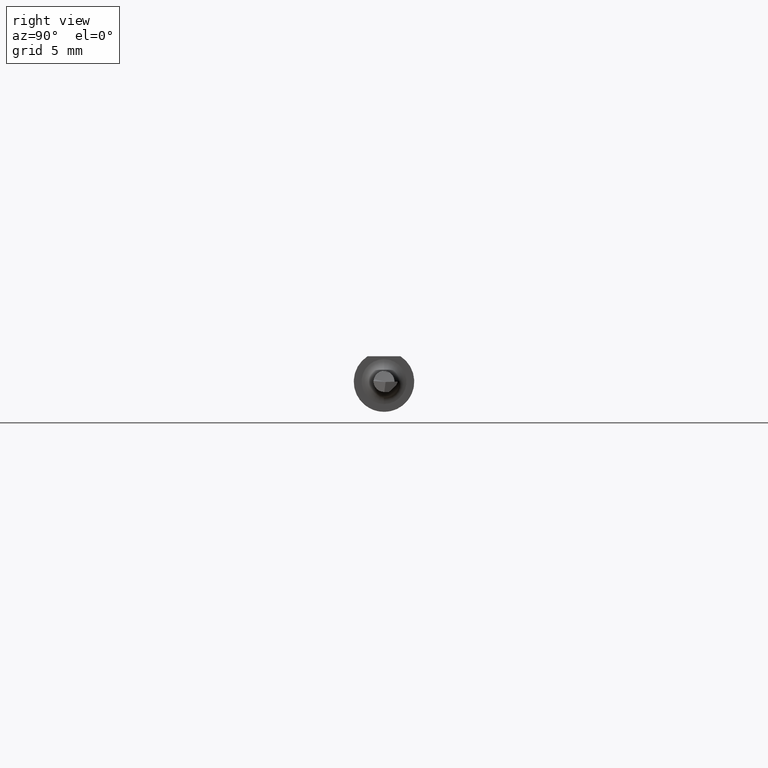
[diagram: clean part render]
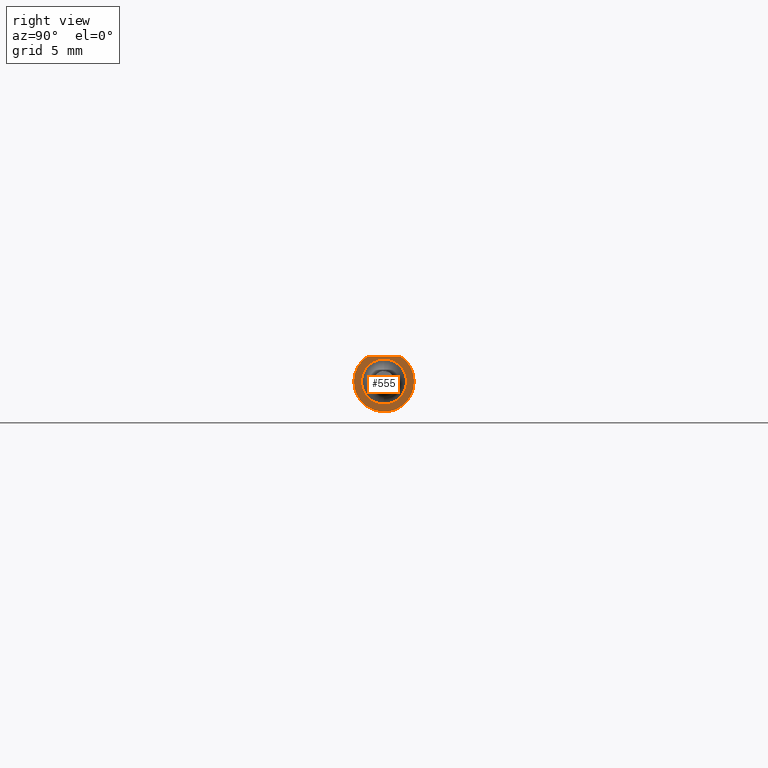
[diagram: same view with one face highlighted and labeled with its STEP entity id]
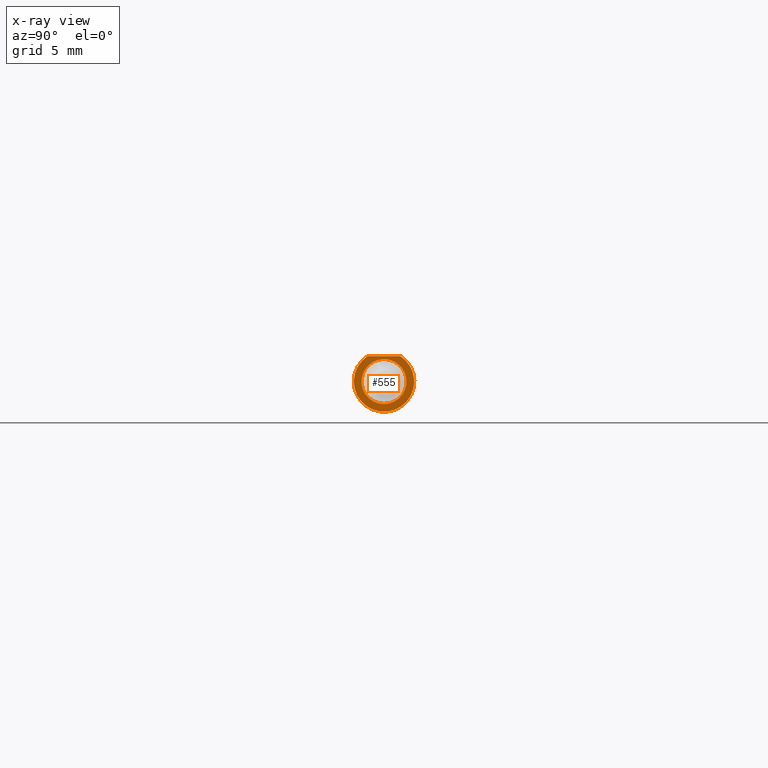
[diagram: x-ray of the same camera — body ghosted, the highlighted face saturated]
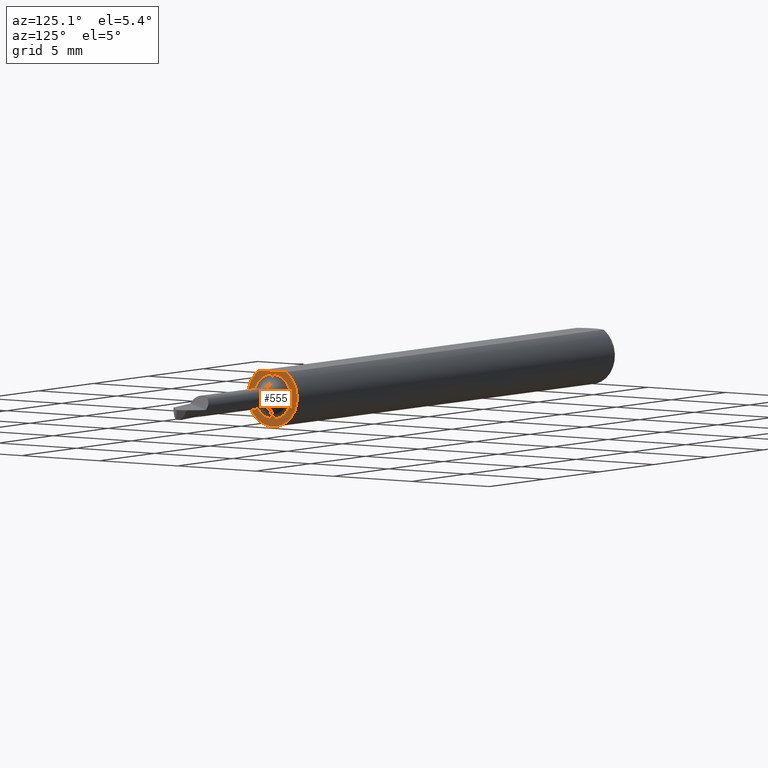
[diagram: same view with one face highlighted and labeled with its STEP entity id]
A machine part, right view. The second image highlights one B-rep face of the part: STEP entity #555.
The next image is the same camera in x-ray: the body ghosted, the highlighted face saturated — about 0% of this face is hidden behind the body in this view.
A second angle (auxiliary view) of the same face is appended — the face is thin or edge-on in the first view.
In plain terms, the highlighted planar face has unit normal (1, 0, 0).
Its self-contained STEP definition (entity closure, byte-faithful):
#13 = DIRECTION ( 'NONE',  ( 0.000000000000000000, 0.000000000000000000, -1.000000000000000000 ) ) ;
#17 = ORIENTED_EDGE ( 'NONE', *, *, #605, .T. ) ;
#24 = EDGE_CURVE ( 'NONE', #223, #612, #282, .T. ) ;
#53 = EDGE_CURVE ( 'NONE', #657, #701, #80, .T. ) ;
#55 = DIRECTION ( 'NONE',  ( 1.000000000000000000, 0.000000000000000000, 0.000000000000000000 ) ) ;
#78 = FACE_BOUND ( 'NONE', #446, .T. ) ;
#80 = CIRCLE ( 'NONE', #182, 0.06234999999999997489 ) ;
#136 = CARTESIAN_POINT ( 'NONE',  ( 1.150000000000000577, 0.000000000000000000, 0.04649999999999999967 ) ) ;
#142 = DIRECTION ( 'NONE',  ( 0.000000000000000000, -1.000000000000000000, -1.036675771730518732E-16 ) ) ;
#182 = AXIS2_PLACEMENT_3D ( 'NONE', #667, #55, #802 ) ;
#198 = CARTESIAN_POINT ( 'NONE',  ( 1.150000000000000577, -0.03386738844375219298, 0.05234999999999997988 ) ) ;
#223 = VERTEX_POINT ( 'NONE', #756 ) ;
#231 = DIRECTION ( 'NONE',  ( 0.000000000000000000, 0.000000000000000000, 1.000000000000000000 ) ) ;
#237 = CIRCLE ( 'NONE', #544, 0.04649999999999999967 ) ;
#240 = AXIS2_PLACEMENT_3D ( 'NONE', #652, #523, #718 ) ;
#255 = FACE_OUTER_BOUND ( 'NONE', #530, .T. ) ;
#263 = PLANE ( 'NONE',  #584 ) ;
#282 = CIRCLE ( 'NONE', #240, 0.04649999999999999967 ) ;
#296 = ORIENTED_EDGE ( 'NONE', *, *, #53, .T. ) ;
#424 = EDGE_CURVE ( 'NONE', #612, #223, #237, .T. ) ;
#437 = CARTESIAN_POINT ( 'NONE',  ( 1.150000000000000577, 0.000000000000000000, 0.000000000000000000 ) ) ;
#446 = EDGE_LOOP ( 'NONE', ( #632, #803 ) ) ;
#456 = DIRECTION ( 'NONE',  ( 1.000000000000000000, 0.000000000000000000, 0.000000000000000000 ) ) ;
#480 = DIRECTION ( 'NONE',  ( -1.000000000000000000, -0.000000000000000000, -0.000000000000000000 ) ) ;
#511 = CARTESIAN_POINT ( 'NONE',  ( 1.150000000000000577, 0.1123499999999999360, 0.000000000000000000 ) ) ;
#523 = DIRECTION ( 'NONE',  ( -1.000000000000000000, -0.000000000000000000, -0.000000000000000000 ) ) ;
#530 = EDGE_LOOP ( 'NONE', ( #296, #17 ) ) ;
#544 = AXIS2_PLACEMENT_3D ( 'NONE', #437, #480, #231 ) ;
#555 = ADVANCED_FACE ( 'NONE', ( #78, #255 ), #263, .T. ) ;
#584 = AXIS2_PLACEMENT_3D ( 'NONE', #511, #456, #13 ) ;
#605 = EDGE_CURVE ( 'NONE', #701, #657, #760, .T. ) ;
#612 = VERTEX_POINT ( 'NONE', #136 ) ;
#618 = VECTOR ( 'NONE', #142, 39.37007874015748143 ) ;
#632 = ORIENTED_EDGE ( 'NONE', *, *, #424, .T. ) ;
#648 = CARTESIAN_POINT ( 'NONE',  ( 1.150000000000000577, 0.03386738844375217911, 0.05234999999999997988 ) ) ;
#652 = CARTESIAN_POINT ( 'NONE',  ( 1.150000000000000577, 0.000000000000000000, 0.000000000000000000 ) ) ;
#657 = VERTEX_POINT ( 'NONE', #198 ) ;
#667 = CARTESIAN_POINT ( 'NONE',  ( 1.150000000000000577, 0.000000000000000000, 0.000000000000000000 ) ) ;
#701 = VERTEX_POINT ( 'NONE', #648 ) ;
#718 = DIRECTION ( 'NONE',  ( 0.000000000000000000, 0.000000000000000000, 1.000000000000000000 ) ) ;
#747 = CARTESIAN_POINT ( 'NONE',  ( 1.150000000000000577, 0.1123499999999999360, 0.05234999999999998682 ) ) ;
#756 = CARTESIAN_POINT ( 'NONE',  ( 1.150000000000000577, 5.694607616035192900E-18, -0.04649999999999999967 ) ) ;
#760 = LINE ( 'NONE', #747, #618 ) ;
#802 = DIRECTION ( 'NONE',  ( 0.000000000000000000, 0.000000000000000000, -1.000000000000000000 ) ) ;
#803 = ORIENTED_EDGE ( 'NONE', *, *, #24, .T. ) ;